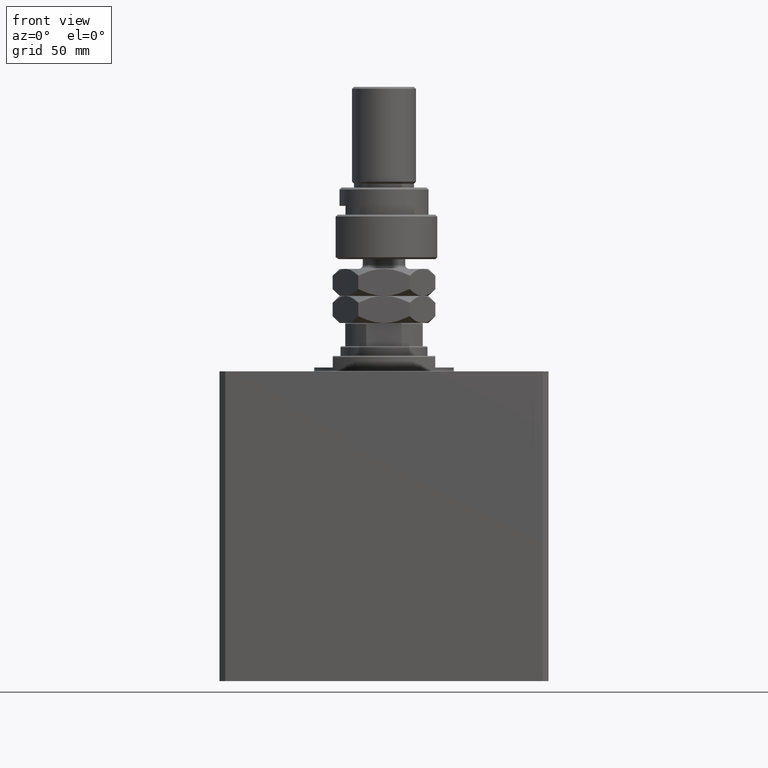
[diagram: clean part render]
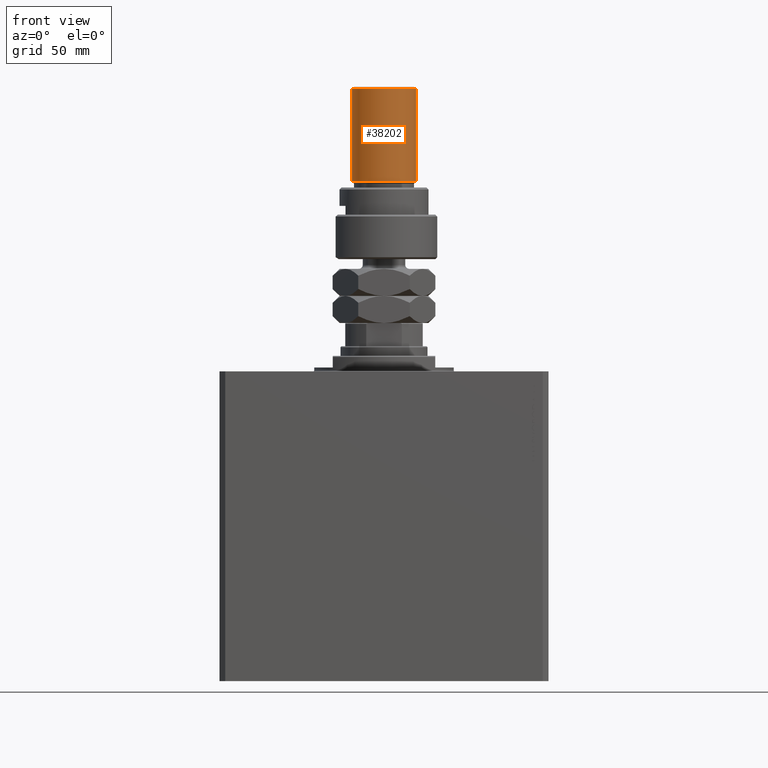
[diagram: same view with one face highlighted and labeled with its STEP entity id]
A machine part, front view. The second image highlights one B-rep face of the part: STEP entity #38202.
In plain terms, the highlighted cylindrical surface (edge-blend (fillet) strip) has radius 16.5 mm, axis along (-0, -0, -1).
Its self-contained STEP definition (entity closure, byte-faithful):
#978 = VERTEX_POINT ( 'NONE', #43624 ) ;
#3070 = DIRECTION ( 'NONE',  ( -0.000000000000000000, -0.000000000000000000, -1.000000000000000000 ) ) ;
#3383 = ORIENTED_EDGE ( 'NONE', *, *, #20809, .T. ) ;
#3498 = ORIENTED_EDGE ( 'NONE', *, *, #10171, .T. ) ;
#3551 = CYLINDRICAL_SURFACE ( 'NONE', #22780, 16.50000000000000000 ) ;
#4339 = DIRECTION ( 'NONE',  ( 0.000000000000000000, 0.000000000000000000, -1.000000000000000000 ) ) ;
#5967 = EDGE_CURVE ( 'NONE', #33341, #13026, #10177, .T. ) ;
#7572 = ORIENTED_EDGE ( 'NONE', *, *, #18836, .T. ) ;
#7630 = DIRECTION ( 'NONE',  ( -1.000000000000000000, 0.000000000000000000, 0.000000000000000000 ) ) ;
#7890 = AXIS2_PLACEMENT_3D ( 'NONE', #12251, #4339, #8174 ) ;
#8174 = DIRECTION ( 'NONE',  ( 1.000000000000000000, 0.000000000000000000, 0.000000000000000000 ) ) ;
#10171 = EDGE_CURVE ( 'NONE', #978, #13026, #36838, .T. ) ;
#10177 = LINE ( 'NONE', #27958, #46707 ) ;
#10387 = CARTESIAN_POINT ( 'NONE',  ( -16.50000000000000000, 0.000000000000000000, 89.00000000000000000 ) ) ;
#10998 = CARTESIAN_POINT ( 'NONE',  ( 0.000000000000000000, 0.000000000000000000, 89.00000000000000000 ) ) ;
#12251 = CARTESIAN_POINT ( 'NONE',  ( 0.000000000000000000, 0.000000000000000000, 88.00000000000001421 ) ) ;
#12671 = CARTESIAN_POINT ( 'NONE',  ( 0.000000000000000000, 0.000000000000000000, 39.99999999999998579 ) ) ;
#12784 = ORIENTED_EDGE ( 'NONE', *, *, #5967, .F. ) ;
#13026 = VERTEX_POINT ( 'NONE', #36724 ) ;
#13264 = VERTEX_POINT ( 'NONE', #18656 ) ;
#18656 = CARTESIAN_POINT ( 'NONE',  ( -16.50000000000000000, 0.000000000000000000, 88.00000000000001421 ) ) ;
#18836 = EDGE_CURVE ( 'NONE', #13264, #978, #29126, .T. ) ;
#20115 = DIRECTION ( 'NONE',  ( -0.000000000000000000, -0.000000000000000000, 1.000000000000000000 ) ) ;
#20809 = EDGE_CURVE ( 'NONE', #33341, #13264, #24742, .T. ) ;
#21275 = CARTESIAN_POINT ( 'NONE',  ( 16.50000000000000000, 2.020667218593133100E-15, 88.00000000000001421 ) ) ;
#22780 = AXIS2_PLACEMENT_3D ( 'NONE', #10998, #3070, #7630 ) ;
#24742 = CIRCLE ( 'NONE', #7890, 16.50000000000000000 ) ;
#25158 = FACE_OUTER_BOUND ( 'NONE', #43859, .T. ) ;
#25750 = DIRECTION ( 'NONE',  ( -0.000000000000000000, -0.000000000000000000, -1.000000000000000000 ) ) ;
#27552 = DIRECTION ( 'NONE',  ( 1.000000000000000000, 0.000000000000000000, 0.000000000000000000 ) ) ;
#27958 = CARTESIAN_POINT ( 'NONE',  ( 16.50000000000000000, 2.020667218593133100E-15, 89.00000000000000000 ) ) ;
#29126 = LINE ( 'NONE', #10387, #34662 ) ;
#32243 = AXIS2_PLACEMENT_3D ( 'NONE', #12671, #20115, #27552 ) ;
#33341 = VERTEX_POINT ( 'NONE', #21275 ) ;
#34662 = VECTOR ( 'NONE', #25750, 1000.000000000000000 ) ;
#35870 = DIRECTION ( 'NONE',  ( -0.000000000000000000, -0.000000000000000000, -1.000000000000000000 ) ) ;
#36724 = CARTESIAN_POINT ( 'NONE',  ( 16.50000000000000000, 2.020667218593133100E-15, 39.99999999999998579 ) ) ;
#36838 = CIRCLE ( 'NONE', #32243, 16.50000000000000000 ) ;
#38202 = ADVANCED_FACE ( 'NONE', ( #25158 ), #3551, .T. ) ;
#43624 = CARTESIAN_POINT ( 'NONE',  ( -16.50000000000000000, 0.000000000000000000, 39.99999999999998579 ) ) ;
#43859 = EDGE_LOOP ( 'NONE', ( #12784, #3383, #7572, #3498 ) ) ;
#46707 = VECTOR ( 'NONE', #35870, 1000.000000000000000 ) ;